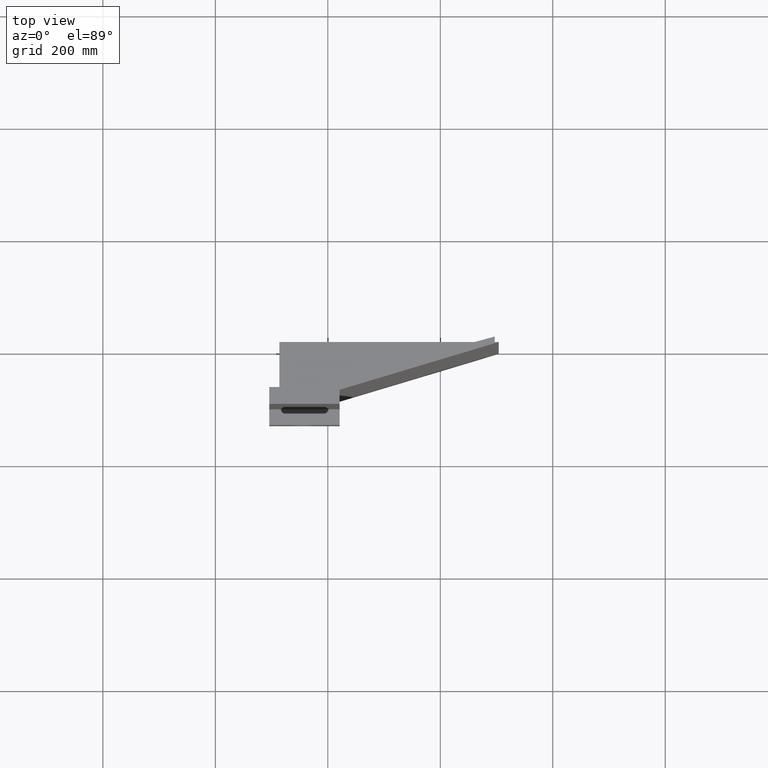
[diagram: clean part render]
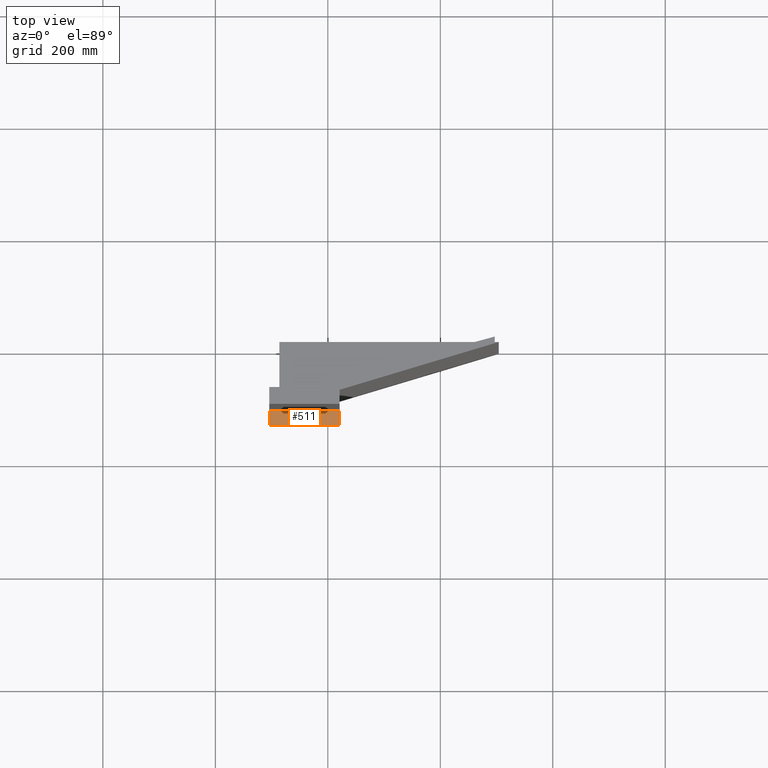
[diagram: same view with one face highlighted and labeled with its STEP entity id]
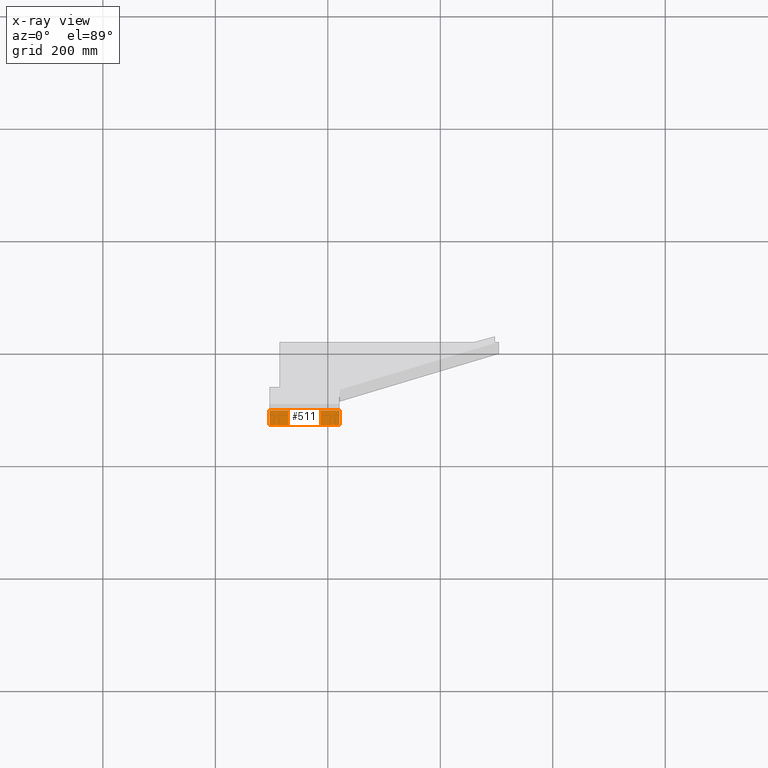
[diagram: x-ray of the same camera — body ghosted, the highlighted face saturated]
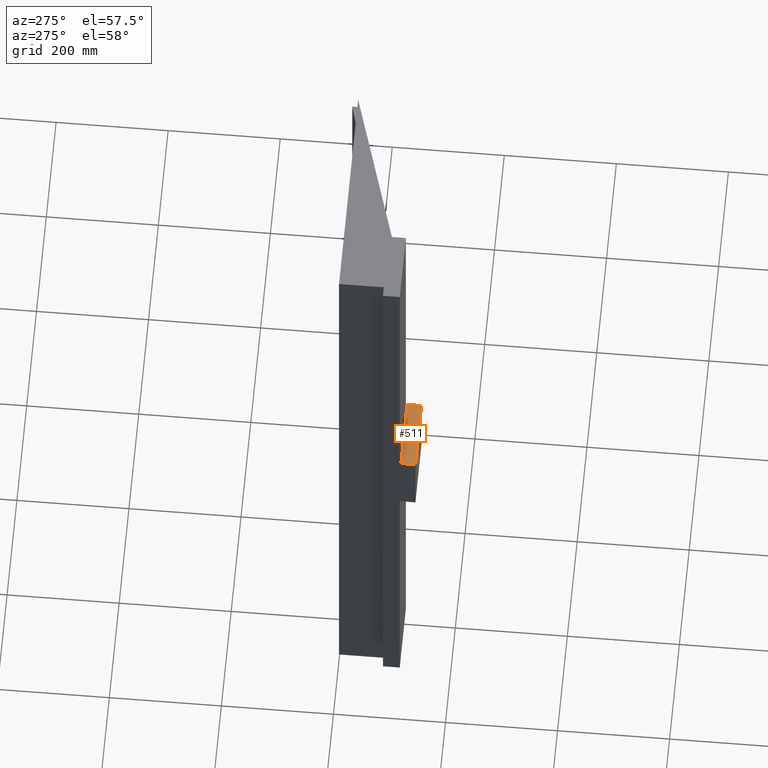
[diagram: same view with one face highlighted and labeled with its STEP entity id]
A machine part, top view. The second image highlights one B-rep face of the part: STEP entity #511.
The next image is the same camera in x-ray: the body ghosted, the highlighted face saturated — about 0% of this face is hidden behind the body in this view.
A second angle (auxiliary view) of the same face is appended — the face is thin or edge-on in the first view.
In plain terms, the highlighted planar face has unit normal (0, 0, -1).
Its self-contained STEP definition (entity closure, byte-faithful):
#46 = DIRECTION ( 'NONE',  ( 1.000000000000000000, 0.0000000000000000000, 0.0000000000000000000 ) ) ;
#65 = EDGE_LOOP ( 'NONE', ( #1894, #1165, #2517, #940 ) ) ;
#202 = CARTESIAN_POINT ( 'NONE',  ( -104.1163824607953400, -112.0000000000000400, 62.49999999999938900 ) ) ;
#219 = CARTESIAN_POINT ( 'NONE',  ( -104.1163824607953400, -138.0000000000000300, 62.49999999999938900 ) ) ;
#221 = VERTEX_POINT ( 'NONE', #1835 ) ;
#250 = CARTESIAN_POINT ( 'NONE',  ( -104.1163824607953400, -138.0000000000000300, 62.49999999999938900 ) ) ;
#441 = LINE ( 'NONE', #554, #1328 ) ;
#481 = VECTOR ( 'NONE', #46, 1000.000000000000000 ) ;
#511 = ADVANCED_FACE ( 'NONE', ( #1742 ), #1847, .F. ) ;
#552 = DIRECTION ( 'NONE',  ( 1.000000000000000000, 0.0000000000000000000, 0.0000000000000000000 ) ) ;
#554 = CARTESIAN_POINT ( 'NONE',  ( -104.1163824607953400, -112.0000000000000400, 62.49999999999938900 ) ) ;
#666 = VECTOR ( 'NONE', #2938, 1000.000000000000000 ) ;
#788 = DIRECTION ( 'NONE',  ( -0.0000000000000000000, -1.000000000000000000, -0.0000000000000000000 ) ) ;
#797 = CARTESIAN_POINT ( 'NONE',  ( -104.1163824607953400, -112.0000000000000400, 62.49999999999938900 ) ) ;
#883 = AXIS2_PLACEMENT_3D ( 'NONE', #797, #2054, #950 ) ;
#935 = CARTESIAN_POINT ( 'NONE',  ( 20.88361753920466100, -112.0000000000000400, 62.49999999999938900 ) ) ;
#940 = ORIENTED_EDGE ( 'NONE', *, *, #2055, .T. ) ;
#950 = DIRECTION ( 'NONE',  ( -1.000000000000000000, 0.0000000000000000000, -0.0000000000000000000 ) ) ;
#957 = VERTEX_POINT ( 'NONE', #2633 ) ;
#1165 = ORIENTED_EDGE ( 'NONE', *, *, #2485, .F. ) ;
#1277 = VECTOR ( 'NONE', #552, 1000.000000000000000 ) ;
#1328 = VECTOR ( 'NONE', #788, 1000.000000000000000 ) ;
#1440 = VERTEX_POINT ( 'NONE', #2165 ) ;
#1742 = FACE_OUTER_BOUND ( 'NONE', #65, .T. ) ;
#1835 = CARTESIAN_POINT ( 'NONE',  ( 20.88361753920466100, -112.0000000000000400, 62.49999999999938900 ) ) ;
#1847 = PLANE ( 'NONE',  #883 ) ;
#1861 = LINE ( 'NONE', #935, #666 ) ;
#1894 = ORIENTED_EDGE ( 'NONE', *, *, #2044, .T. ) ;
#2044 = EDGE_CURVE ( 'NONE', #2827, #957, #2212, .T. ) ;
#2054 = DIRECTION ( 'NONE',  ( 0.0000000000000000000, 0.0000000000000000000, -1.000000000000000000 ) ) ;
#2055 = EDGE_CURVE ( 'NONE', #1440, #2827, #441, .T. ) ;
#2096 = EDGE_CURVE ( 'NONE', #1440, #221, #2785, .T. ) ;
#2165 = CARTESIAN_POINT ( 'NONE',  ( -104.1163824607953400, -112.0000000000000400, 62.49999999999938900 ) ) ;
#2212 = LINE ( 'NONE', #219, #1277 ) ;
#2485 = EDGE_CURVE ( 'NONE', #221, #957, #1861, .T. ) ;
#2517 = ORIENTED_EDGE ( 'NONE', *, *, #2096, .F. ) ;
#2633 = CARTESIAN_POINT ( 'NONE',  ( 20.88361753920466100, -138.0000000000000300, 62.49999999999938900 ) ) ;
#2785 = LINE ( 'NONE', #202, #481 ) ;
#2827 = VERTEX_POINT ( 'NONE', #250 ) ;
#2938 = DIRECTION ( 'NONE',  ( -0.0000000000000000000, -1.000000000000000000, -0.0000000000000000000 ) ) ;